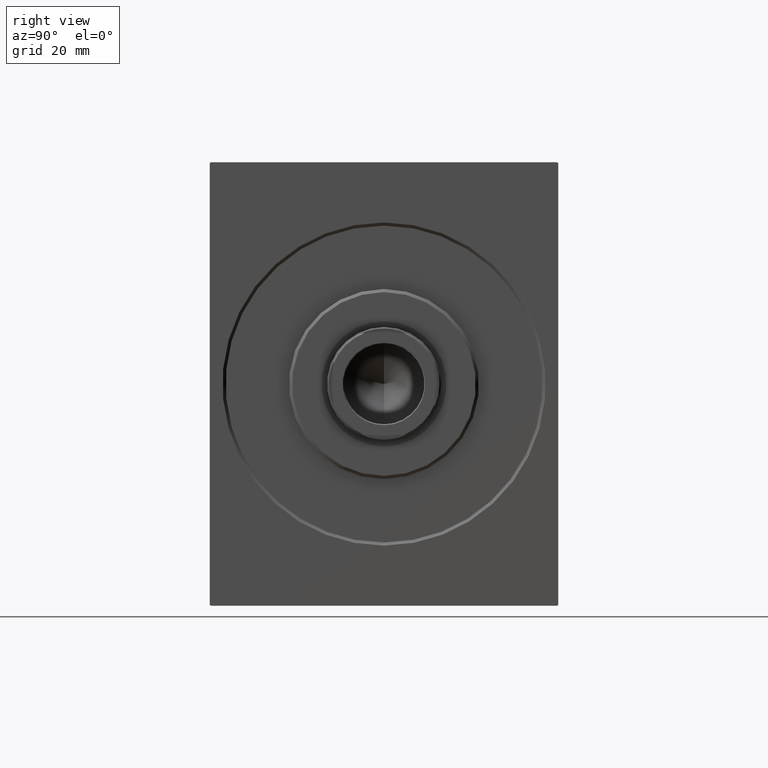
[diagram: clean part render]
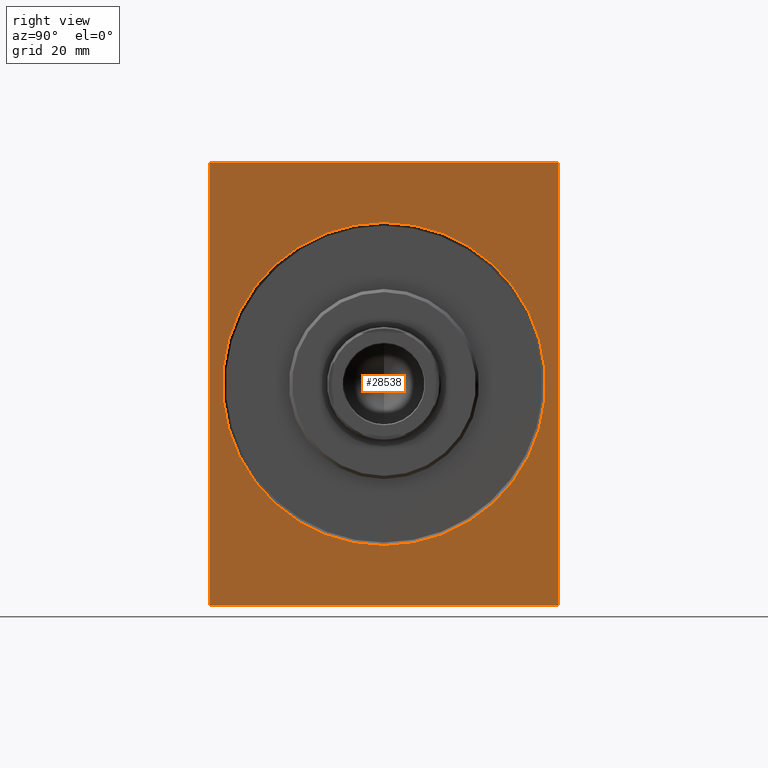
[diagram: same view with one face highlighted and labeled with its STEP entity id]
A machine part, right view. The second image highlights one B-rep face of the part: STEP entity #28538.
In plain terms, the highlighted planar face has unit normal (-1, 0, 0).
Its self-contained STEP definition (entity closure, byte-faithful):
#1056 = CARTESIAN_POINT ( 'NONE',  ( 0.000000000000000000, -54.69999999999999574, 69.99999999999998579 ) ) ;
#1543 = VERTEX_POINT ( 'NONE', #34891 ) ;
#2443 = CARTESIAN_POINT ( 'NONE',  ( 0.000000000000000000, 0.000000000000000000, 0.000000000000000000 ) ) ;
#3010 = CARTESIAN_POINT ( 'NONE',  ( 0.000000000000000000, -54.99999999999999289, -70.00000000000001421 ) ) ;
#3180 = CARTESIAN_POINT ( 'NONE',  ( 0.000000000000000000, 55.00000000000002132, -69.70000000000005969 ) ) ;
#3585 = CIRCLE ( 'NONE', #19474, 50.99999999999999289 ) ;
#3696 = ORIENTED_EDGE ( 'NONE', *, *, #29370, .T. ) ;
#4206 = DIRECTION ( 'NONE',  ( -0.000000000000000000, -0.7071067811865474617, 0.7071067811865474617 ) ) ;
#4459 = CARTESIAN_POINT ( 'NONE',  ( 0.000000000000000000, -54.69999999999999574, -70.00000000000001421 ) ) ;
#4471 = CARTESIAN_POINT ( 'NONE',  ( 0.000000000000000000, -54.99999999999999289, 69.99999999999998579 ) ) ;
#4551 = EDGE_CURVE ( 'NONE', #34430, #5290, #14612, .T. ) ;
#4624 = EDGE_LOOP ( 'NONE', ( #24512, #32848 ) ) ;
#4850 = DIRECTION ( 'NONE',  ( 0.000000000000000000, 0.000000000000000000, -1.000000000000000000 ) ) ;
#5079 = VECTOR ( 'NONE', #9784, 1000.000000000000000 ) ;
#5290 = VERTEX_POINT ( 'NONE', #1056 ) ;
#5307 = ORIENTED_EDGE ( 'NONE', *, *, #26745, .T. ) ;
#5367 = CARTESIAN_POINT ( 'NONE',  ( 0.000000000000000000, 0.000000000000000000, 0.000000000000000000 ) ) ;
#5915 = VERTEX_POINT ( 'NONE', #12372 ) ;
#7370 = LINE ( 'NONE', #13882, #34820 ) ;
#7808 = ORIENTED_EDGE ( 'NONE', *, *, #20561, .T. ) ;
#9040 = PLANE ( 'NONE',  #36202 ) ;
#9784 = DIRECTION ( 'NONE',  ( 0.000000000000000000, -1.982541115402065110E-16, 1.000000000000000000 ) ) ;
#10706 = LINE ( 'NONE', #40800, #22902 ) ;
#12372 = CARTESIAN_POINT ( 'NONE',  ( 0.000000000000000000, 6.245698675651499656E-15, -50.99999999999999289 ) ) ;
#12526 = VECTOR ( 'NONE', #13791, 1000.000000000000000 ) ;
#13791 = DIRECTION ( 'NONE',  ( 0.000000000000000000, 0.000000000000000000, -1.000000000000000000 ) ) ;
#13874 = VERTEX_POINT ( 'NONE', #36307 ) ;
#13882 = CARTESIAN_POINT ( 'NONE',  ( 0.000000000000000000, 54.99999999999999289, 70.00000000000000000 ) ) ;
#14612 = LINE ( 'NONE', #27825, #34451 ) ;
#15319 = CARTESIAN_POINT ( 'NONE',  ( 0.000000000000000000, -54.99999999999999289, 69.70000000000000284 ) ) ;
#15579 = EDGE_CURVE ( 'NONE', #5915, #1543, #37370, .T. ) ;
#15741 = FACE_OUTER_BOUND ( 'NONE', #31645, .T. ) ;
#15963 = DIRECTION ( 'NONE',  ( 1.000000000000000000, 0.000000000000000000, 0.000000000000000000 ) ) ;
#16079 = DIRECTION ( 'NONE',  ( -0.000000000000000000, 0.7071067811865638930, -0.7071067811865311414 ) ) ;
#16178 = DIRECTION ( 'NONE',  ( 0.000000000000000000, -0.7071067811865802133, -0.7071067811865149322 ) ) ;
#18151 = EDGE_CURVE ( 'NONE', #34430, #36559, #40418, .T. ) ;
#18359 = FACE_BOUND ( 'NONE', #4624, .T. ) ;
#18413 = CARTESIAN_POINT ( 'NONE',  ( 0.000000000000000000, 54.69999999999999574, 70.00000000000000000 ) ) ;
#18591 = EDGE_CURVE ( 'NONE', #1543, #5915, #3585, .T. ) ;
#19474 = AXIS2_PLACEMENT_3D ( 'NONE', #2443, #41660, #4850 ) ;
#19840 = CARTESIAN_POINT ( 'NONE',  ( 0.000000000000000000, 0.000000000000000000, 0.000000000000000000 ) ) ;
#20561 = EDGE_CURVE ( 'NONE', #39821, #36559, #10706, .T. ) ;
#20675 = ORIENTED_EDGE ( 'NONE', *, *, #28111, .F. ) ;
#21358 = VECTOR ( 'NONE', #42632, 1000.000000000000000 ) ;
#22902 = VECTOR ( 'NONE', #4206, 1000.000000000000114 ) ;
#23195 = CARTESIAN_POINT ( 'NONE',  ( 0.000000000000000000, 55.00000000000002132, -70.00000000000001421 ) ) ;
#24512 = ORIENTED_EDGE ( 'NONE', *, *, #18591, .T. ) ;
#26669 = LINE ( 'NONE', #42715, #27875 ) ;
#26745 = EDGE_CURVE ( 'NONE', #40169, #13874, #26669, .T. ) ;
#26889 = CARTESIAN_POINT ( 'NONE',  ( 0.000000000000000000, 55.00000000000002132, -69.70000000000005969 ) ) ;
#26989 = LINE ( 'NONE', #3180, #32765 ) ;
#27825 = CARTESIAN_POINT ( 'NONE',  ( 0.000000000000000000, -54.99999999999999289, 69.70000000000000284 ) ) ;
#27875 = VECTOR ( 'NONE', #16079, 1000.000000000000000 ) ;
#28075 = EDGE_CURVE ( 'NONE', #31001, #13874, #38584, .T. ) ;
#28111 = EDGE_CURVE ( 'NONE', #40169, #5290, #7370, .T. ) ;
#28318 = DIRECTION ( 'NONE',  ( 0.000000000000000000, 0.000000000000000000, -1.000000000000000000 ) ) ;
#28538 = ADVANCED_FACE ( 'NONE', ( #18359, #15741 ), #9040, .F. ) ;
#29327 = ORIENTED_EDGE ( 'NONE', *, *, #28075, .F. ) ;
#29370 = EDGE_CURVE ( 'NONE', #31001, #38957, #26989, .T. ) ;
#29379 = ORIENTED_EDGE ( 'NONE', *, *, #36801, .F. ) ;
#29632 = LINE ( 'NONE', #3010, #21358 ) ;
#31001 = VERTEX_POINT ( 'NONE', #26889 ) ;
#31645 = EDGE_LOOP ( 'NONE', ( #20675, #5307, #29327, #3696, #29379, #7808, #41612, #31747 ) ) ;
#31747 = ORIENTED_EDGE ( 'NONE', *, *, #4551, .T. ) ;
#32765 = VECTOR ( 'NONE', #16178, 999.9999999999998863 ) ;
#32848 = ORIENTED_EDGE ( 'NONE', *, *, #15579, .T. ) ;
#33064 = DIRECTION ( 'NONE',  ( 0.000000000000000000, 0.000000000000000000, -1.000000000000000000 ) ) ;
#33852 = CARTESIAN_POINT ( 'NONE',  ( 0.000000000000000000, 54.70000000000002416, -70.00000000000001421 ) ) ;
#34430 = VERTEX_POINT ( 'NONE', #15319 ) ;
#34451 = VECTOR ( 'NONE', #34549, 1000.000000000000114 ) ;
#34549 = DIRECTION ( 'NONE',  ( -0.000000000000000000, 0.7071067811865474617, 0.7071067811865474617 ) ) ;
#34607 = AXIS2_PLACEMENT_3D ( 'NONE', #19840, #38756, #33064 ) ;
#34820 = VECTOR ( 'NONE', #37047, 1000.000000000000000 ) ;
#34891 = CARTESIAN_POINT ( 'NONE',  ( 0.000000000000000000, 0.000000000000000000, 50.99999999999999289 ) ) ;
#36202 = AXIS2_PLACEMENT_3D ( 'NONE', #5367, #15963, #28318 ) ;
#36307 = CARTESIAN_POINT ( 'NONE',  ( 0.000000000000000000, 54.99999999999999289, 69.70000000000003126 ) ) ;
#36559 = VERTEX_POINT ( 'NONE', #37459 ) ;
#36801 = EDGE_CURVE ( 'NONE', #39821, #38957, #29632, .T. ) ;
#37047 = DIRECTION ( 'NONE',  ( 0.000000000000000000, -1.000000000000000000, -1.261617073437677999E-16 ) ) ;
#37370 = CIRCLE ( 'NONE', #34607, 50.99999999999999289 ) ;
#37459 = CARTESIAN_POINT ( 'NONE',  ( 0.000000000000000000, -54.99999999999999289, -69.70000000000003126 ) ) ;
#38584 = LINE ( 'NONE', #23195, #5079 ) ;
#38756 = DIRECTION ( 'NONE',  ( 1.000000000000000000, 0.000000000000000000, 0.000000000000000000 ) ) ;
#38957 = VERTEX_POINT ( 'NONE', #33852 ) ;
#39821 = VERTEX_POINT ( 'NONE', #4459 ) ;
#40169 = VERTEX_POINT ( 'NONE', #18413 ) ;
#40418 = LINE ( 'NONE', #4471, #12526 ) ;
#40800 = CARTESIAN_POINT ( 'NONE',  ( 0.000000000000000000, -54.69999999999999574, -70.00000000000001421 ) ) ;
#41612 = ORIENTED_EDGE ( 'NONE', *, *, #18151, .F. ) ;
#41660 = DIRECTION ( 'NONE',  ( 1.000000000000000000, 0.000000000000000000, 0.000000000000000000 ) ) ;
#42632 = DIRECTION ( 'NONE',  ( 0.000000000000000000, 1.000000000000000000, 0.000000000000000000 ) ) ;
#42715 = CARTESIAN_POINT ( 'NONE',  ( 0.000000000000000000, 54.69999999999999574, 70.00000000000000000 ) ) ;